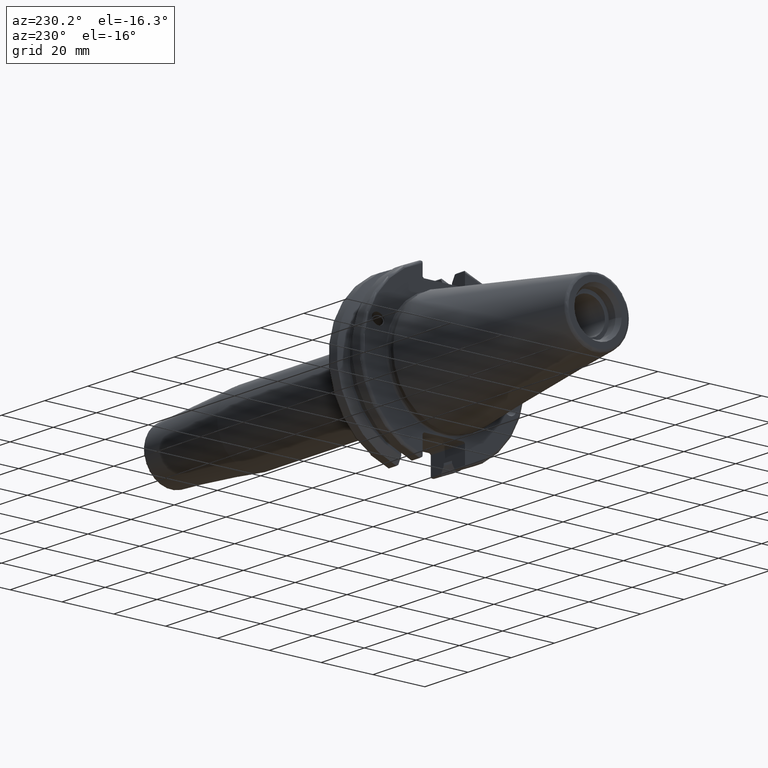
[diagram: clean part render]
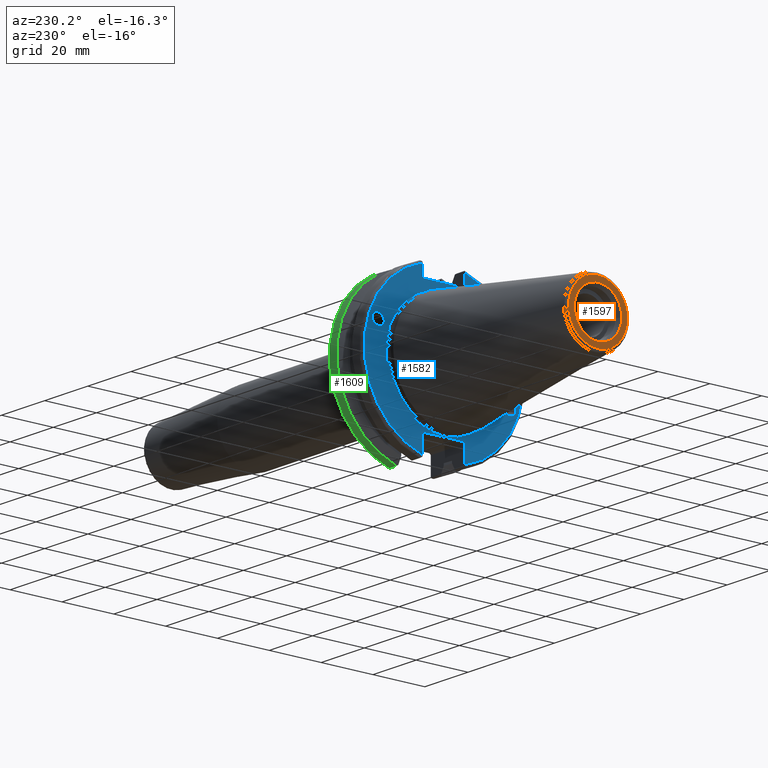
[diagram: same view with three faces highlighted in distinct colors, each labeled with its STEP entity id]
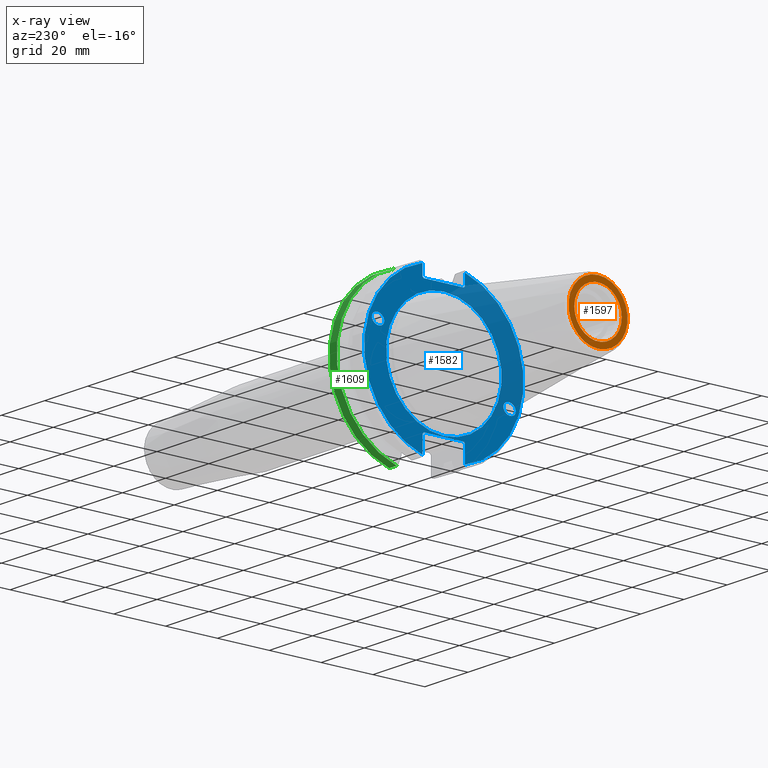
[diagram: x-ray of the same camera — body ghosted, the three highlighted faces saturated]
A machine part, auxiliary view with three faces highlighted in distinct colors.
The next image is the same camera in x-ray (body ghosted, the three faces saturated) — at least one of them is partly hidden behind the body in this view.
Their STEP definitions:

[orange] entity #1597 — the highlighted planar face has unit normal (-1, 0, 0).
#76=FACE_BOUND('',#343,.T.);
#99=PLANE('',#1793);
#236=FACE_OUTER_BOUND('',#342,.T.);
#342=EDGE_LOOP('',(#1387));
#343=EDGE_LOOP('',(#1388));
#632=CIRCLE('',#1792,11.4071305970304);
#633=CIRCLE('',#1794,9.15);
#791=VERTEX_POINT('',#3017);
#792=VERTEX_POINT('',#3021);
#1007=EDGE_CURVE('',#791,#791,#632,.T.);
#1008=EDGE_CURVE('',#792,#792,#633,.T.);
#1387=ORIENTED_EDGE('',*,*,#1007,.F.);
#1388=ORIENTED_EDGE('',*,*,#1008,.T.);
#1597=ADVANCED_FACE('',(#236,#76),#99,.T.);
#1792=AXIS2_PLACEMENT_3D('',#3019,#2200,#2201);
#1793=AXIS2_PLACEMENT_3D('',#3020,#2202,#2203);
#1794=AXIS2_PLACEMENT_3D('',#3022,#2204,#2205);
#2200=DIRECTION('center_axis',(1.,0.,0.));
#2201=DIRECTION('ref_axis',(0.,-1.,1.83697019872103E-16));
#2202=DIRECTION('center_axis',(-1.,0.,0.));
#2203=DIRECTION('ref_axis',(0.,0.,1.));
#2204=DIRECTION('center_axis',(1.,0.,0.));
#2205=DIRECTION('ref_axis',(0.,0.,-1.));
#3017=CARTESIAN_POINT('',(-68.25,-1.39697059731091E-15,11.4071305970304));
#3019=CARTESIAN_POINT('Origin',(-68.25,0.,0.));
#3020=CARTESIAN_POINT('Origin',(-68.25,12.271875,0.));
#3021=CARTESIAN_POINT('',(-68.25,-9.15,-1.12055182121983E-15));
#3022=CARTESIAN_POINT('Origin',(-68.25,0.,0.));

[blue] entity #1582 — the highlighted planar face has unit normal (-1, 0, 0).
#73=FACE_BOUND('',#325,.T.);
#74=FACE_BOUND('',#326,.T.);
#75=FACE_BOUND('',#327,.T.);
#91=PLANE('',#1766);
#134=ELLIPSE('',#1713,2.44154917752292,2.00000000000001);
#143=ELLIPSE('',#1756,2.44154917752292,2.00000000000001);
#221=FACE_OUTER_BOUND('',#324,.T.);
#324=EDGE_LOOP('',(#1282,#1283,#1284,#1285,#1286,#1287,#1288,#1289,#1290,
#1291,#1292,#1293));
#325=EDGE_LOOP('',(#1294));
#326=EDGE_LOOP('',(#1295));
#327=EDGE_LOOP('',(#1296));
#426=LINE('',#2800,#524);
#427=LINE('',#2802,#525);
#428=LINE('',#2804,#526);
#429=LINE('',#2806,#527);
#430=LINE('',#2808,#528);
#431=LINE('',#2812,#529);
#432=LINE('',#2814,#530);
#433=LINE('',#2816,#531);
#434=LINE('',#2818,#532);
#435=LINE('',#2819,#533);
#524=VECTOR('',#2125,10.);
#525=VECTOR('',#2126,10.);
#526=VECTOR('',#2127,10.);
#527=VECTOR('',#2128,10.);
#528=VECTOR('',#2129,10.);
#529=VECTOR('',#2132,10.);
#530=VECTOR('',#2133,10.);
#531=VECTOR('',#2134,10.);
#532=VECTOR('',#2135,10.);
#533=VECTOR('',#2136,10.);
#619=CIRCLE('',#1764,22.3);
#621=CIRCLE('',#1767,30.75);
#622=CIRCLE('',#1768,30.75);
#705=VERTEX_POINT('',#2593);
#745=VERTEX_POINT('',#2776);
#750=VERTEX_POINT('',#2791);
#751=VERTEX_POINT('',#2796);
#752=VERTEX_POINT('',#2797);
#753=VERTEX_POINT('',#2799);
#754=VERTEX_POINT('',#2801);
#755=VERTEX_POINT('',#2803);
#756=VERTEX_POINT('',#2805);
#757=VERTEX_POINT('',#2807);
#758=VERTEX_POINT('',#2809);
#759=VERTEX_POINT('',#2811);
#760=VERTEX_POINT('',#2813);
#761=VERTEX_POINT('',#2815);
#762=VERTEX_POINT('',#2817);
#882=EDGE_CURVE('',#705,#705,#134,.T.);
#938=EDGE_CURVE('',#745,#745,#143,.T.);
#945=EDGE_CURVE('',#750,#750,#619,.T.);
#947=EDGE_CURVE('',#751,#752,#621,.T.);
#948=EDGE_CURVE('',#751,#753,#426,.T.);
#949=EDGE_CURVE('',#754,#753,#427,.T.);
#950=EDGE_CURVE('',#754,#755,#428,.T.);
#951=EDGE_CURVE('',#756,#755,#429,.T.);
#952=EDGE_CURVE('',#756,#757,#430,.T.);
#953=EDGE_CURVE('',#758,#757,#622,.T.);
#954=EDGE_CURVE('',#758,#759,#431,.T.);
#955=EDGE_CURVE('',#760,#759,#432,.T.);
#956=EDGE_CURVE('',#760,#761,#433,.T.);
#957=EDGE_CURVE('',#762,#761,#434,.T.);
#958=EDGE_CURVE('',#762,#752,#435,.T.);
#1282=ORIENTED_EDGE('',*,*,#947,.F.);
#1283=ORIENTED_EDGE('',*,*,#948,.T.);
#1284=ORIENTED_EDGE('',*,*,#949,.F.);
#1285=ORIENTED_EDGE('',*,*,#950,.T.);
#1286=ORIENTED_EDGE('',*,*,#951,.F.);
#1287=ORIENTED_EDGE('',*,*,#952,.T.);
#1288=ORIENTED_EDGE('',*,*,#953,.F.);
#1289=ORIENTED_EDGE('',*,*,#954,.T.);
#1290=ORIENTED_EDGE('',*,*,#955,.F.);
#1291=ORIENTED_EDGE('',*,*,#956,.T.);
#1292=ORIENTED_EDGE('',*,*,#957,.F.);
#1293=ORIENTED_EDGE('',*,*,#958,.T.);
#1294=ORIENTED_EDGE('',*,*,#882,.T.);
#1295=ORIENTED_EDGE('',*,*,#938,.T.);
#1296=ORIENTED_EDGE('',*,*,#945,.F.);
#1582=ADVANCED_FACE('',(#221,#73,#74,#75),#91,.T.);
#1713=AXIS2_PLACEMENT_3D('',#2595,#1996,#1997);
#1756=AXIS2_PLACEMENT_3D('',#2778,#2099,#2100);
#1764=AXIS2_PLACEMENT_3D('',#2793,#2117,#2118);
#1766=AXIS2_PLACEMENT_3D('',#2795,#2121,#2122);
#1767=AXIS2_PLACEMENT_3D('',#2798,#2123,#2124);
#1768=AXIS2_PLACEMENT_3D('',#2810,#2130,#2131);
#1996=DIRECTION('center_axis',(1.,0.,0.));
#1997=DIRECTION('ref_axis',(5.68400912649E-17,-0.939692620785909,-0.342020143325667));
#2099=DIRECTION('center_axis',(1.,0.,0.));
#2100=DIRECTION('ref_axis',(5.68400912649E-17,0.939692620785909,0.342020143325667));
#2117=DIRECTION('center_axis',(-1.,0.,0.));
#2118=DIRECTION('ref_axis',(0.,-1.,1.83697019872103E-16));
#2121=DIRECTION('center_axis',(-1.,0.,0.));
#2122=DIRECTION('ref_axis',(0.,0.,1.));
#2123=DIRECTION('center_axis',(1.,0.,0.));
#2124=DIRECTION('ref_axis',(0.,-1.,1.60812264967664E-16));
#2125=DIRECTION('',(0.,0.,-1.));
#2126=DIRECTION('',(0.,-0.70710678118655,0.707106781186545));
#2127=DIRECTION('',(0.,1.,0.));
#2128=DIRECTION('',(0.,-0.707106781186549,-0.707106781186546));
#2129=DIRECTION('',(0.,0.,1.));
#2130=DIRECTION('center_axis',(1.,0.,0.));
#2131=DIRECTION('ref_axis',(0.,1.,1.60812264967664E-16));
#2132=DIRECTION('',(0.,0.,1.));
#2133=DIRECTION('',(0.,0.707106781186549,-0.707106781186546));
#2134=DIRECTION('',(0.,-1.,0.));
#2135=DIRECTION('',(0.,0.707106781186549,0.707106781186546));
#2136=DIRECTION('',(0.,0.,-1.));
#2593=CARTESIAN_POINT('',(3.175,-23.0773950158153,-8.39948487016));
#2595=CARTESIAN_POINT('Origin',(3.175,-25.3717007612195,-9.23454386979305));
#2776=CARTESIAN_POINT('',(3.175,23.0773950158153,8.39948487016));
#2778=CARTESIAN_POINT('Origin',(3.175,25.3717007612195,9.23454386979306));
#2791=CARTESIAN_POINT('',(3.175,-2.7309623620986E-15,22.3));
#2793=CARTESIAN_POINT('Origin',(3.175,0.,0.));
#2795=CARTESIAN_POINT('Origin',(3.175,31.75,0.));
#2796=CARTESIAN_POINT('',(3.175,-8.18999999999999,29.6392712461019));
#2797=CARTESIAN_POINT('',(3.175,-8.19,-29.6392712461019));
#2798=CARTESIAN_POINT('Origin',(3.175,0.,0.));
#2799=CARTESIAN_POINT('',(3.175,-8.18999999999999,25.5));
#2800=CARTESIAN_POINT('',(3.175,-8.18999999999999,12.5));
#2801=CARTESIAN_POINT('',(3.175,-7.68999999999999,25.));
#2802=CARTESIAN_POINT('',(3.175,8.29500000000007,9.01500000000004));
#2803=CARTESIAN_POINT('',(3.175,7.69,25.));
#2804=CARTESIAN_POINT('',(3.175,15.875,25.));
#2805=CARTESIAN_POINT('',(3.175,8.19,25.5));
#2806=CARTESIAN_POINT('',(3.175,7.58000000000002,24.89));
#2807=CARTESIAN_POINT('',(3.175,8.19,29.6392712461019));
#2808=CARTESIAN_POINT('',(3.175,8.19,12.5));
#2809=CARTESIAN_POINT('',(3.175,8.18999999999999,-29.6392712461019));
#2810=CARTESIAN_POINT('Origin',(3.175,0.,0.));
#2811=CARTESIAN_POINT('',(3.175,8.18999999999999,-23.1));
#2812=CARTESIAN_POINT('',(3.175,8.18999999999999,-11.3));
#2813=CARTESIAN_POINT('',(3.175,7.69,-22.6));
#2814=CARTESIAN_POINT('',(3.175,8.18000000000002,-23.09));
#2815=CARTESIAN_POINT('',(3.175,-7.69,-22.6));
#2816=CARTESIAN_POINT('',(3.175,15.875,-22.6));
#2817=CARTESIAN_POINT('',(3.175,-8.19,-23.1));
#2818=CARTESIAN_POINT('',(3.175,7.69500000000004,-7.21500000000002));
#2819=CARTESIAN_POINT('',(3.175,-8.19,-11.3));

[green] entity #1609 — the highlighted cylindrical surface (partial cylindrical patch) has radius 31.75 mm, axis along (1, 0, 0).
#169=CYLINDRICAL_SURFACE('',#1807,31.75);
#248=FACE_OUTER_BOUND('',#355,.T.);
#355=EDGE_LOOP('',(#1442,#1443,#1444,#1445));
#438=LINE('',#2865,#536);
#466=LINE('',#3057,#564);
#536=VECTOR('',#2149,10.);
#564=VECTOR('',#2243,10.);
#624=CIRCLE('',#1772,31.75);
#635=CIRCLE('',#1808,31.75);
#766=VERTEX_POINT('',#2839);
#767=VERTEX_POINT('',#2848);
#769=VERTEX_POINT('',#2861);
#798=VERTEX_POINT('',#3056);
#964=EDGE_CURVE('',#766,#767,#624,.T.);
#968=EDGE_CURVE('',#769,#766,#438,.T.);
#1024=EDGE_CURVE('',#767,#798,#466,.T.);
#1026=EDGE_CURVE('',#769,#798,#635,.T.);
#1442=ORIENTED_EDGE('',*,*,#964,.F.);
#1443=ORIENTED_EDGE('',*,*,#968,.F.);
#1444=ORIENTED_EDGE('',*,*,#1026,.T.);
#1445=ORIENTED_EDGE('',*,*,#1024,.F.);
#1609=ADVANCED_FACE('',(#248),#169,.T.);
#1772=AXIS2_PLACEMENT_3D('',#2849,#2144,#2145);
#1807=AXIS2_PLACEMENT_3D('',#3061,#2244,#2245);
#1808=AXIS2_PLACEMENT_3D('',#3062,#2246,#2247);
#2144=DIRECTION('center_axis',(1.,0.,0.));
#2145=DIRECTION('ref_axis',(0.,1.,-6.12323399573677E-17));
#2149=DIRECTION('',(1.,0.,0.));
#2243=DIRECTION('',(-1.,0.,0.));
#2244=DIRECTION('center_axis',(1.,0.,0.));
#2245=DIRECTION('ref_axis',(0.,1.,0.));
#2246=DIRECTION('center_axis',(1.,0.,0.));
#2247=DIRECTION('ref_axis',(0.,0.,-1.));
#2839=CARTESIAN_POINT('',(18.05,8.67204822802685,-30.5427254764662));
#2848=CARTESIAN_POINT('',(18.05,8.67204822802685,30.5427254764662));
#2849=CARTESIAN_POINT('Origin',(18.05,0.,0.));
#2861=CARTESIAN_POINT('',(14.6602667690756,8.67204822802685,-30.5427254764662));
#2865=CARTESIAN_POINT('',(16.8551333845378,8.67204822802685,-30.5427254764662));
#3056=CARTESIAN_POINT('',(14.6602667690756,8.67204822802685,30.5427254764662));
#3057=CARTESIAN_POINT('',(16.8551333845378,8.67204822802685,30.5427254764662));
#3061=CARTESIAN_POINT('Origin',(16.8551333845378,0.,0.));
#3062=CARTESIAN_POINT('Origin',(14.6602667690756,0.,0.));